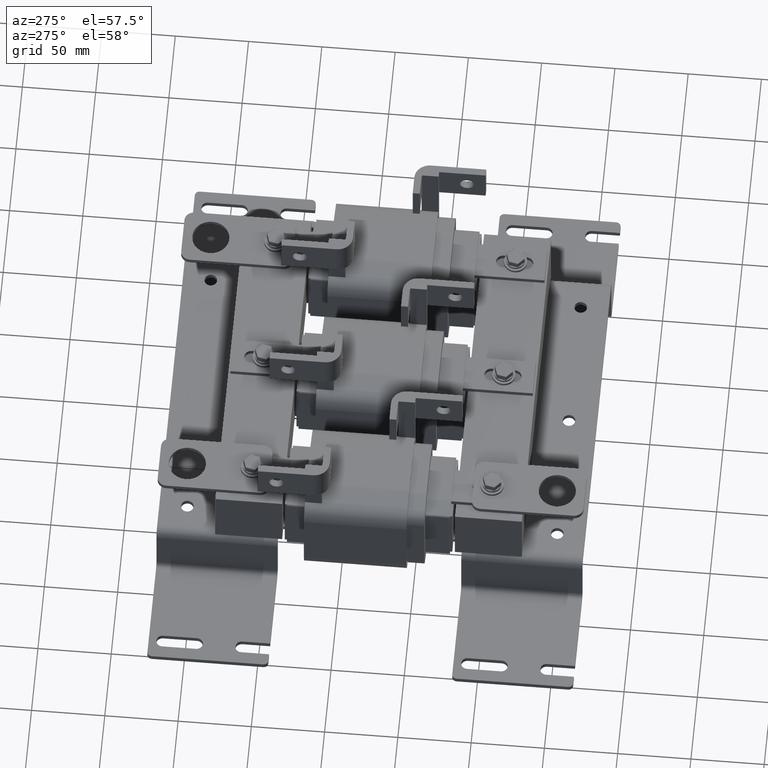
[diagram: clean part render]
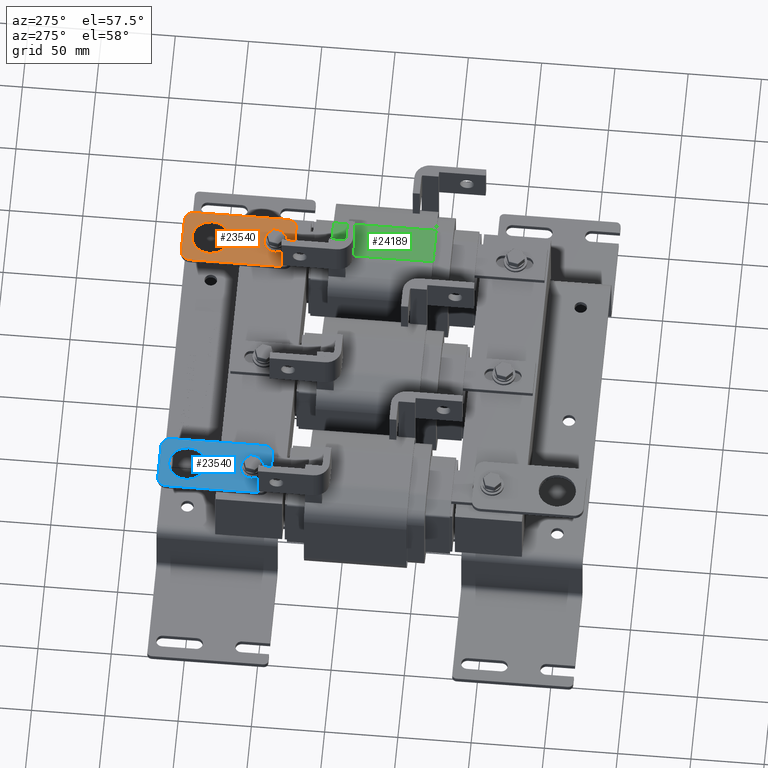
[diagram: same view with three faces highlighted in distinct colors, each labeled with its STEP entity id]
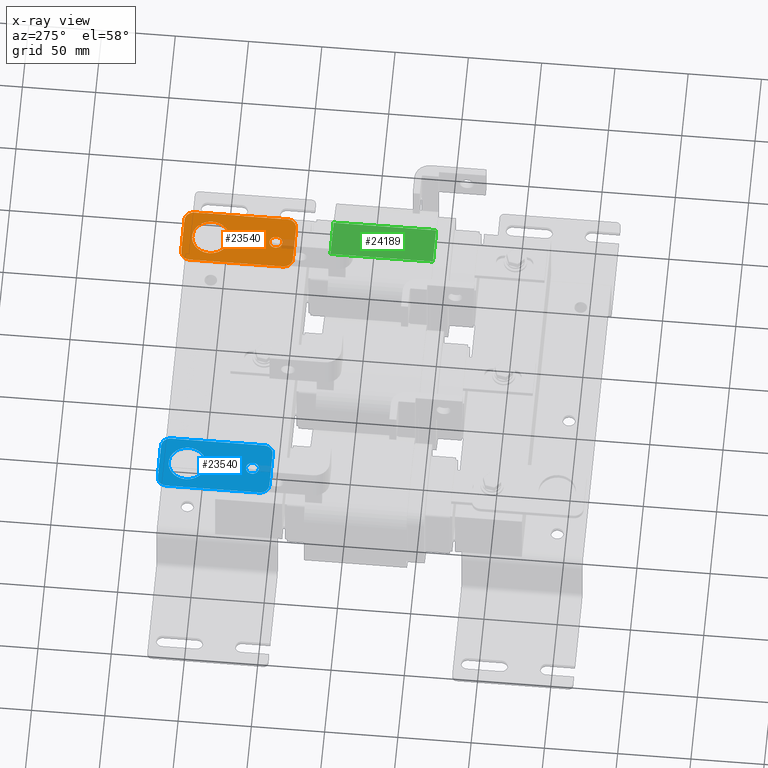
[diagram: x-ray of the same camera — body ghosted, the three highlighted faces saturated]
A machine part, auxiliary view with three faces highlighted in distinct colors.
The next image is the same camera in x-ray (body ghosted, the three faces saturated) — at least one of them is partly hidden behind the body in this view.
Their STEP definitions:

[orange] entity #23540 — the highlighted planar face has unit normal (0, -0, 1).
#872=FACE_BOUND('',#3574,.T.);
#873=FACE_BOUND('',#3575,.T.);
#1255=PLANE('',#25254);
#2224=FACE_OUTER_BOUND('',#3573,.T.);
#3573=EDGE_LOOP('',(#18637,#18638,#18639,#18640,#18641,#18642,#18643,#18644));
#3574=EDGE_LOOP('',(#18645));
#3575=EDGE_LOOP('',(#18646));
#5356=LINE('',#38508,#7735);
#5360=LINE('',#38520,#7739);
#5364=LINE('',#38532,#7743);
#5368=LINE('',#38543,#7747);
#7735=VECTOR('',#28844,0.393700787401575);
#7739=VECTOR('',#28856,0.393700787401575);
#7743=VECTOR('',#28868,0.393700787401575);
#7747=VECTOR('',#28880,0.393700787401575);
#9213=CIRCLE('',#25234,0.5);
#9215=CIRCLE('',#25237,0.1715);
#9216=CIRCLE('',#25239,0.25);
#9218=CIRCLE('',#25243,0.25);
#9220=CIRCLE('',#25247,0.25);
#9222=CIRCLE('',#25251,0.25);
#10823=VERTEX_POINT('',#38488);
#10825=VERTEX_POINT('',#38494);
#10826=VERTEX_POINT('',#38498);
#10827=VERTEX_POINT('',#38499);
#10830=VERTEX_POINT('',#38507);
#10832=VERTEX_POINT('',#38513);
#10834=VERTEX_POINT('',#38519);
#10836=VERTEX_POINT('',#38525);
#10838=VERTEX_POINT('',#38531);
#10840=VERTEX_POINT('',#38537);
#13636=EDGE_CURVE('',#10823,#10823,#9213,.T.);
#13639=EDGE_CURVE('',#10825,#10825,#9215,.T.);
#13640=EDGE_CURVE('',#10826,#10827,#9216,.T.);
#13644=EDGE_CURVE('',#10827,#10830,#5356,.T.);
#13647=EDGE_CURVE('',#10830,#10832,#9218,.T.);
#13650=EDGE_CURVE('',#10832,#10834,#5360,.T.);
#13653=EDGE_CURVE('',#10834,#10836,#9220,.T.);
#13656=EDGE_CURVE('',#10836,#10838,#5364,.T.);
#13659=EDGE_CURVE('',#10838,#10840,#9222,.T.);
#13662=EDGE_CURVE('',#10840,#10826,#5368,.T.);
#18637=ORIENTED_EDGE('',*,*,#13640,.F.);
#18638=ORIENTED_EDGE('',*,*,#13662,.F.);
#18639=ORIENTED_EDGE('',*,*,#13659,.F.);
#18640=ORIENTED_EDGE('',*,*,#13656,.F.);
#18641=ORIENTED_EDGE('',*,*,#13653,.F.);
#18642=ORIENTED_EDGE('',*,*,#13650,.F.);
#18643=ORIENTED_EDGE('',*,*,#13647,.F.);
#18644=ORIENTED_EDGE('',*,*,#13644,.F.);
#18645=ORIENTED_EDGE('',*,*,#13636,.T.);
#18646=ORIENTED_EDGE('',*,*,#13639,.T.);
#23540=ADVANCED_FACE('',(#2224,#872,#873),#1255,.T.);
#25234=AXIS2_PLACEMENT_3D('',#38490,#28825,#28826);
#25237=AXIS2_PLACEMENT_3D('',#38496,#28832,#28833);
#25239=AXIS2_PLACEMENT_3D('',#38500,#28836,#28837);
#25243=AXIS2_PLACEMENT_3D('',#38514,#28849,#28850);
#25247=AXIS2_PLACEMENT_3D('',#38526,#28861,#28862);
#25251=AXIS2_PLACEMENT_3D('',#38538,#28873,#28874);
#25254=AXIS2_PLACEMENT_3D('',#38545,#28882,#28883);
#28825=DIRECTION('center_axis',(0.,0.,-1.));
#28826=DIRECTION('ref_axis',(-1.,0.,0.));
#28832=DIRECTION('center_axis',(0.,0.,-1.));
#28833=DIRECTION('ref_axis',(-1.,0.,0.));
#28836=DIRECTION('center_axis',(0.,0.,-1.));
#28837=DIRECTION('ref_axis',(-1.,1.3987061727561E-15,0.));
#28844=DIRECTION('',(0.,-1.,0.));
#28849=DIRECTION('center_axis',(0.,0.,-1.));
#28850=DIRECTION('ref_axis',(2.09805925913416E-15,1.,0.));
#28856=DIRECTION('',(-1.,0.,0.));
#28861=DIRECTION('center_axis',(0.,0.,-1.));
#28862=DIRECTION('ref_axis',(1.,-8.74191357972565E-16,0.));
#28868=DIRECTION('',(5.24514814783539E-17,1.,0.));
#28873=DIRECTION('center_axis',(0.,0.,-1.));
#28874=DIRECTION('ref_axis',(-6.99353086378053E-16,-1.,0.));
#28880=DIRECTION('',(1.,3.49676543189026E-16,0.));
#28882=DIRECTION('center_axis',(0.,0.,1.));
#28883=DIRECTION('ref_axis',(1.,0.,0.));
#38488=CARTESIAN_POINT('',(1.25,2.25,0.125));
#38490=CARTESIAN_POINT('Origin',(0.75,2.25,0.125));
#38494=CARTESIAN_POINT('',(0.9215,0.5,0.125));
#38496=CARTESIAN_POINT('Origin',(0.75,0.5,0.125));
#38498=CARTESIAN_POINT('',(1.25,3.,0.125));
#38499=CARTESIAN_POINT('',(1.5,2.75,0.125));
#38500=CARTESIAN_POINT('Origin',(1.25,2.75,0.125));
#38507=CARTESIAN_POINT('',(1.5,0.25,0.125));
#38508=CARTESIAN_POINT('',(1.5,2.75,0.125));
#38513=CARTESIAN_POINT('',(1.25,0.,0.125));
#38514=CARTESIAN_POINT('Origin',(1.25,0.25,0.125));
#38519=CARTESIAN_POINT('',(0.25,0.,0.125));
#38520=CARTESIAN_POINT('',(1.25,0.,0.125));
#38525=CARTESIAN_POINT('',(4.37095678986282E-17,0.25,0.125));
#38526=CARTESIAN_POINT('Origin',(0.25,0.25,0.125));
#38531=CARTESIAN_POINT('',(1.74838271594513E-16,2.75,0.125));
#38532=CARTESIAN_POINT('',(4.37095678986282E-17,0.25,0.125));
#38537=CARTESIAN_POINT('',(0.25,3.,0.125));
#38538=CARTESIAN_POINT('Origin',(0.25,2.75,0.125));
#38543=CARTESIAN_POINT('',(0.25,3.,0.125));
#38545=CARTESIAN_POINT('Origin',(0.75,1.5,0.125));

[blue] entity #23540 — the highlighted planar face has unit normal (0, -0, 1).
#872=FACE_BOUND('',#3574,.T.);
#873=FACE_BOUND('',#3575,.T.);
#1255=PLANE('',#25254);
#2224=FACE_OUTER_BOUND('',#3573,.T.);
#3573=EDGE_LOOP('',(#18637,#18638,#18639,#18640,#18641,#18642,#18643,#18644));
#3574=EDGE_LOOP('',(#18645));
#3575=EDGE_LOOP('',(#18646));
#5356=LINE('',#38508,#7735);
#5360=LINE('',#38520,#7739);
#5364=LINE('',#38532,#7743);
#5368=LINE('',#38543,#7747);
#7735=VECTOR('',#28844,0.393700787401575);
#7739=VECTOR('',#28856,0.393700787401575);
#7743=VECTOR('',#28868,0.393700787401575);
#7747=VECTOR('',#28880,0.393700787401575);
#9213=CIRCLE('',#25234,0.5);
#9215=CIRCLE('',#25237,0.1715);
#9216=CIRCLE('',#25239,0.25);
#9218=CIRCLE('',#25243,0.25);
#9220=CIRCLE('',#25247,0.25);
#9222=CIRCLE('',#25251,0.25);
#10823=VERTEX_POINT('',#38488);
#10825=VERTEX_POINT('',#38494);
#10826=VERTEX_POINT('',#38498);
#10827=VERTEX_POINT('',#38499);
#10830=VERTEX_POINT('',#38507);
#10832=VERTEX_POINT('',#38513);
#10834=VERTEX_POINT('',#38519);
#10836=VERTEX_POINT('',#38525);
#10838=VERTEX_POINT('',#38531);
#10840=VERTEX_POINT('',#38537);
#13636=EDGE_CURVE('',#10823,#10823,#9213,.T.);
#13639=EDGE_CURVE('',#10825,#10825,#9215,.T.);
#13640=EDGE_CURVE('',#10826,#10827,#9216,.T.);
#13644=EDGE_CURVE('',#10827,#10830,#5356,.T.);
#13647=EDGE_CURVE('',#10830,#10832,#9218,.T.);
#13650=EDGE_CURVE('',#10832,#10834,#5360,.T.);
#13653=EDGE_CURVE('',#10834,#10836,#9220,.T.);
#13656=EDGE_CURVE('',#10836,#10838,#5364,.T.);
#13659=EDGE_CURVE('',#10838,#10840,#9222,.T.);
#13662=EDGE_CURVE('',#10840,#10826,#5368,.T.);
#18637=ORIENTED_EDGE('',*,*,#13640,.F.);
#18638=ORIENTED_EDGE('',*,*,#13662,.F.);
#18639=ORIENTED_EDGE('',*,*,#13659,.F.);
#18640=ORIENTED_EDGE('',*,*,#13656,.F.);
#18641=ORIENTED_EDGE('',*,*,#13653,.F.);
#18642=ORIENTED_EDGE('',*,*,#13650,.F.);
#18643=ORIENTED_EDGE('',*,*,#13647,.F.);
#18644=ORIENTED_EDGE('',*,*,#13644,.F.);
#18645=ORIENTED_EDGE('',*,*,#13636,.T.);
#18646=ORIENTED_EDGE('',*,*,#13639,.T.);
#23540=ADVANCED_FACE('',(#2224,#872,#873),#1255,.T.);
#25234=AXIS2_PLACEMENT_3D('',#38490,#28825,#28826);
#25237=AXIS2_PLACEMENT_3D('',#38496,#28832,#28833);
#25239=AXIS2_PLACEMENT_3D('',#38500,#28836,#28837);
#25243=AXIS2_PLACEMENT_3D('',#38514,#28849,#28850);
#25247=AXIS2_PLACEMENT_3D('',#38526,#28861,#28862);
#25251=AXIS2_PLACEMENT_3D('',#38538,#28873,#28874);
#25254=AXIS2_PLACEMENT_3D('',#38545,#28882,#28883);
#28825=DIRECTION('center_axis',(0.,0.,-1.));
#28826=DIRECTION('ref_axis',(-1.,0.,0.));
#28832=DIRECTION('center_axis',(0.,0.,-1.));
#28833=DIRECTION('ref_axis',(-1.,0.,0.));
#28836=DIRECTION('center_axis',(0.,0.,-1.));
#28837=DIRECTION('ref_axis',(-1.,1.3987061727561E-15,0.));
#28844=DIRECTION('',(0.,-1.,0.));
#28849=DIRECTION('center_axis',(0.,0.,-1.));
#28850=DIRECTION('ref_axis',(2.09805925913416E-15,1.,0.));
#28856=DIRECTION('',(-1.,0.,0.));
#28861=DIRECTION('center_axis',(0.,0.,-1.));
#28862=DIRECTION('ref_axis',(1.,-8.74191357972565E-16,0.));
#28868=DIRECTION('',(5.24514814783539E-17,1.,0.));
#28873=DIRECTION('center_axis',(0.,0.,-1.));
#28874=DIRECTION('ref_axis',(-6.99353086378053E-16,-1.,0.));
#28880=DIRECTION('',(1.,3.49676543189026E-16,0.));
#28882=DIRECTION('center_axis',(0.,0.,1.));
#28883=DIRECTION('ref_axis',(1.,0.,0.));
#38488=CARTESIAN_POINT('',(1.25,2.25,0.125));
#38490=CARTESIAN_POINT('Origin',(0.75,2.25,0.125));
#38494=CARTESIAN_POINT('',(0.9215,0.5,0.125));
#38496=CARTESIAN_POINT('Origin',(0.75,0.5,0.125));
#38498=CARTESIAN_POINT('',(1.25,3.,0.125));
#38499=CARTESIAN_POINT('',(1.5,2.75,0.125));
#38500=CARTESIAN_POINT('Origin',(1.25,2.75,0.125));
#38507=CARTESIAN_POINT('',(1.5,0.25,0.125));
#38508=CARTESIAN_POINT('',(1.5,2.75,0.125));
#38513=CARTESIAN_POINT('',(1.25,0.,0.125));
#38514=CARTESIAN_POINT('Origin',(1.25,0.25,0.125));
#38519=CARTESIAN_POINT('',(0.25,0.,0.125));
#38520=CARTESIAN_POINT('',(1.25,0.,0.125));
#38525=CARTESIAN_POINT('',(4.37095678986282E-17,0.25,0.125));
#38526=CARTESIAN_POINT('Origin',(0.25,0.25,0.125));
#38531=CARTESIAN_POINT('',(1.74838271594513E-16,2.75,0.125));
#38532=CARTESIAN_POINT('',(4.37095678986282E-17,0.25,0.125));
#38537=CARTESIAN_POINT('',(0.25,3.,0.125));
#38538=CARTESIAN_POINT('Origin',(0.25,2.75,0.125));
#38543=CARTESIAN_POINT('',(0.25,3.,0.125));
#38545=CARTESIAN_POINT('Origin',(0.75,1.5,0.125));

[green] entity #24189 — the highlighted planar face has unit normal (-0, -0, 1).
#1614=PLANE('',#26490);
#2873=FACE_OUTER_BOUND('',#4264,.T.);
#4264=EDGE_LOOP('',(#22233,#22234,#22235,#22236));
#6605=LINE('',#42228,#8984);
#6606=LINE('',#42231,#8985);
#6607=LINE('',#42233,#8986);
#6608=LINE('',#42234,#8987);
#8984=VECTOR('',#32589,0.393700787401575);
#8985=VECTOR('',#32592,0.393700787401575);
#8986=VECTOR('',#32593,0.393700787401575);
#8987=VECTOR('',#32594,0.393700787401575);
#12052=VERTEX_POINT('',#42224);
#12053=VERTEX_POINT('',#42226);
#12054=VERTEX_POINT('',#42230);
#12055=VERTEX_POINT('',#42232);
#15479=EDGE_CURVE('',#12052,#12053,#6605,.T.);
#15480=EDGE_CURVE('',#12054,#12052,#6606,.T.);
#15481=EDGE_CURVE('',#12055,#12053,#6607,.T.);
#15482=EDGE_CURVE('',#12054,#12055,#6608,.T.);
#22233=ORIENTED_EDGE('',*,*,#15480,.T.);
#22234=ORIENTED_EDGE('',*,*,#15479,.T.);
#22235=ORIENTED_EDGE('',*,*,#15481,.F.);
#22236=ORIENTED_EDGE('',*,*,#15482,.F.);
#24189=ADVANCED_FACE('',(#2873),#1614,.T.);
#26490=AXIS2_PLACEMENT_3D('',#42229,#32590,#32591);
#32589=DIRECTION('',(0.,0.,1.));
#32590=DIRECTION('center_axis',(1.,1.65065251567959E-10,0.));
#32591=DIRECTION('ref_axis',(-1.65065251567959E-10,1.,0.));
#32592=DIRECTION('',(-1.65065251567959E-10,1.,0.));
#32593=DIRECTION('',(-1.65065251567959E-10,1.,0.));
#32594=DIRECTION('',(0.,0.,1.));
#42224=CARTESIAN_POINT('',(2.40000000023404,-0.897999999755162,0.));
#42226=CARTESIAN_POINT('',(2.40000000023404,-0.897999999755162,2.755));
#42228=CARTESIAN_POINT('',(2.40000000023404,-0.897999999755162,0.));
#42229=CARTESIAN_POINT('Origin',(2.40000000039828,-1.89299999937275,0.));
#42230=CARTESIAN_POINT('',(2.40000000039828,-1.89299999937275,0.));
#42231=CARTESIAN_POINT('',(2.40000000039828,-1.89299999937275,0.));
#42232=CARTESIAN_POINT('',(2.40000000039828,-1.89299999937275,2.755));
#42233=CARTESIAN_POINT('',(2.40000000039828,-1.89299999937275,2.755));
#42234=CARTESIAN_POINT('',(2.40000000039828,-1.89299999937275,0.));